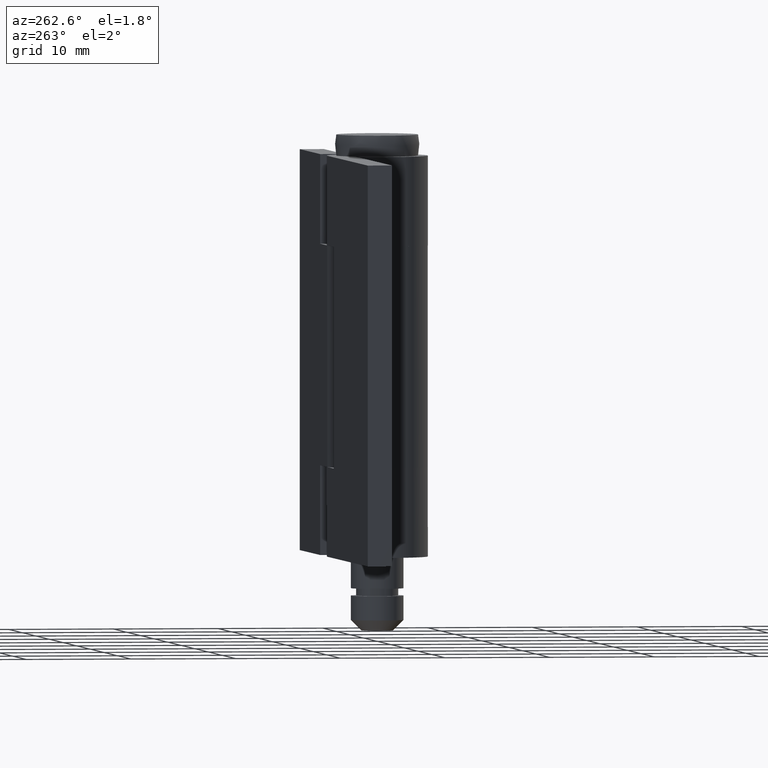
[diagram: clean part render]
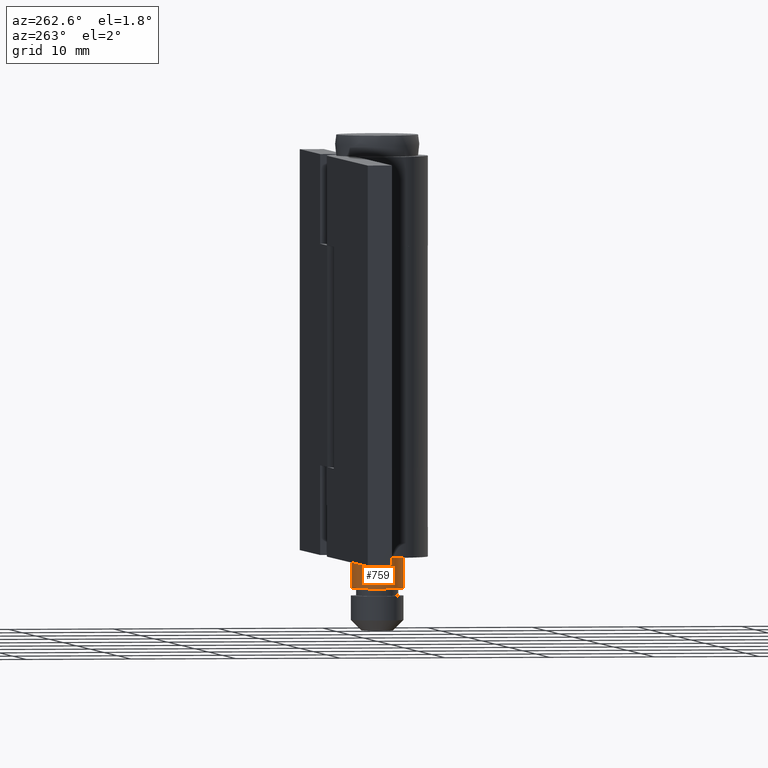
[diagram: same view with one face highlighted and labeled with its STEP entity id]
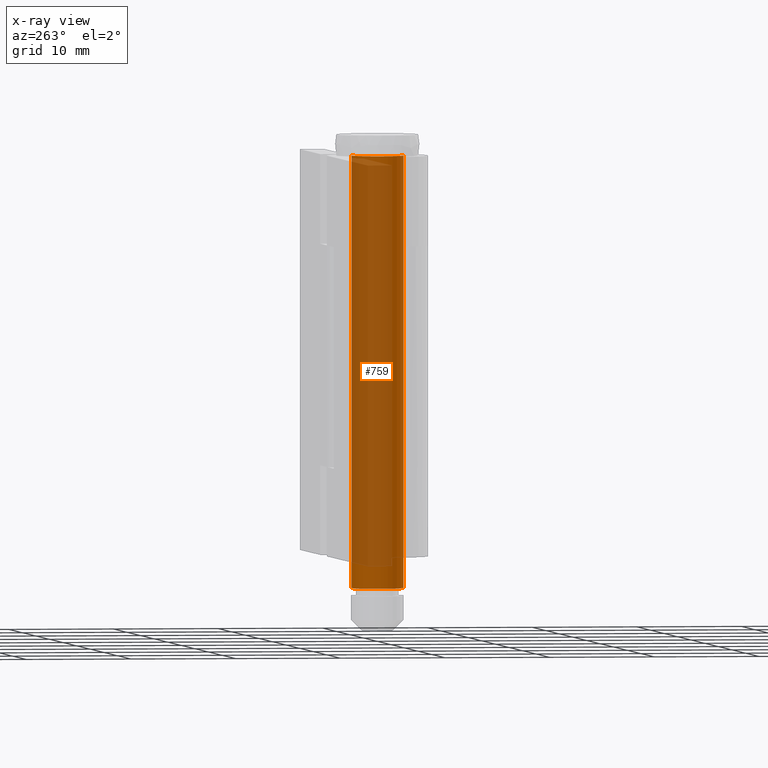
[diagram: x-ray of the same camera — body ghosted, the highlighted face saturated]
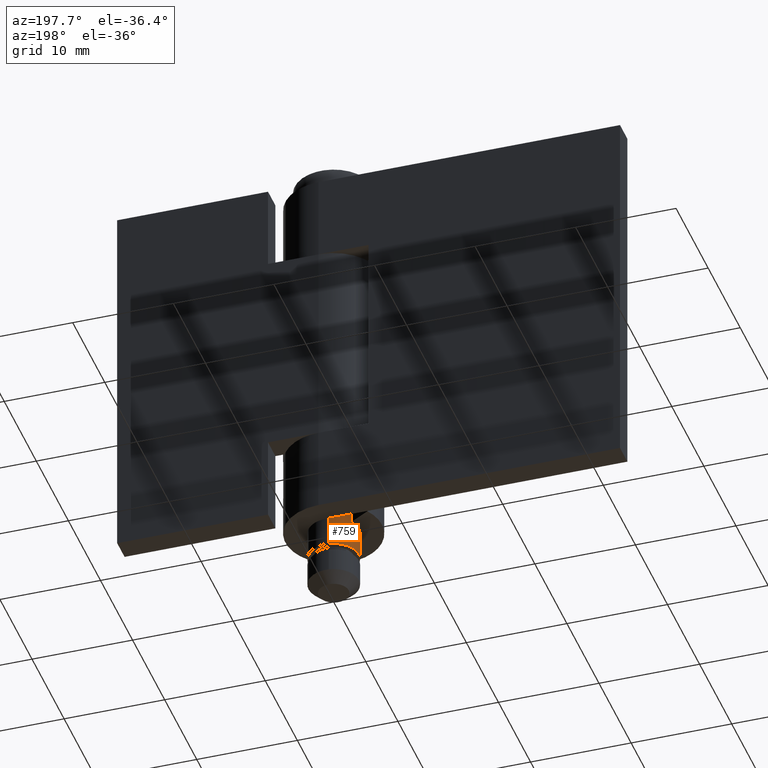
[diagram: same view with one face highlighted and labeled with its STEP entity id]
A machine part, auxiliary view. The second image highlights one B-rep face of the part: STEP entity #759.
The next image is the same camera in x-ray: the body ghosted, the highlighted face saturated — about 73% of this face is hidden behind the body in this view.
A second angle (auxiliary view) of the same face is appended — the face is thin or edge-on in the first view.
In plain terms, the highlighted face is a freeform B-spline surface patch.
Its self-contained STEP definition (entity closure, byte-faithful):
#596=CARTESIAN_POINT('',(-0.295085586658774,2.482523815913265,-2.999999999875517));
#597=VERTEX_POINT('',#596);
#615=CARTESIAN_POINT('',(-0.295085586658625,2.482523815912011,38.000000000000007));
#616=VERTEX_POINT('',#615);
#617=CARTESIAN_POINT('',(-0.295085586658625,2.482523815912011,38.000000000000007));
#618=CARTESIAN_POINT('',(-0.295085586658774,2.482523815913265,-2.999999999875517));
#619=QUASI_UNIFORM_CURVE('',1,(#617,#618),.UNSPECIFIED.,.F.,.U.);
#620=EDGE_CURVE('',#616,#597,#619,.T.);
#639=CARTESIAN_POINT('',(0.152621348919608,-2.495336996054433,38.0));
#640=VERTEX_POINT('',#639);
#654=CARTESIAN_POINT('',(0.152621348919685,-2.495336996055693,-2.999999999875513));
#655=VERTEX_POINT('',#654);
#656=CARTESIAN_POINT('',(0.152621348919608,-2.495336996054433,38.0));
#657=CARTESIAN_POINT('',(0.152621348919685,-2.495336996055693,-2.999999999875513));
#658=QUASI_UNIFORM_CURVE('',1,(#656,#657),.UNSPECIFIED.,.F.,.U.);
#659=EDGE_CURVE('',#640,#655,#658,.T.);
#677=CARTESIAN_POINT('',(0.152621348837474,-2.495336996060087,39.024999999996894));
#678=CARTESIAN_POINT('',(-2.342715647222613,-2.647958344897561,39.024999999996894));
#679=CARTESIAN_POINT('',(-2.495336996060087,-0.152621348837474,39.024999999996894));
#680=CARTESIAN_POINT('',(-2.639465491837052,2.203858727103540,39.024999999996901));
#681=CARTESIAN_POINT('',(-0.295085586642537,2.482523815914558,39.024999999996901));
#682=CARTESIAN_POINT('',(0.152621348837474,-2.495336996060087,-4.050624999872326));
#683=CARTESIAN_POINT('',(-2.342715647222613,-2.647958344897561,-4.050624999872325));
#684=CARTESIAN_POINT('',(-2.495336996060087,-0.152621348837474,-4.050624999872326));
#685=CARTESIAN_POINT('',(-2.639465491837052,2.203858727103540,-4.050624999872326));
#686=CARTESIAN_POINT('',(-0.295085586642537,2.482523815914558,-4.050624999872327));
#694=(BOUNDED_SURFACE()B_SPLINE_SURFACE(2,1,((#677,#682),(#678,#683),(#679,#684),(#680,#685),(#681,#686)),.UNSPECIFIED.,.F.,.F.,.U.)B_SPLINE_SURFACE_WITH_KNOTS((3,2,3),(2,2),(0.0,4.142135623739947,8.118585822530294),(0.0,43.075624999869227),.UNSPECIFIED.)GEOMETRIC_REPRESENTATION_ITEM()RATIONAL_B_SPLINE_SURFACE(((1.0,1.0),(0.707106781186548,0.707106781186548),(1.0,1.0),(0.718822509939086,0.718822509939086),(0.977505800795127,0.977505800795127)))REPRESENTATION_ITEM('')SURFACE());
#695=CARTESIAN_POINT('',(-2.500000000006695,0.0,-2.999999999875515));
#696=VERTEX_POINT('',#695);
#697=CARTESIAN_POINT('',(-2.500000000006695,0.0,-2.999999999875515));
#698=CARTESIAN_POINT('',(-2.500000000006696,2.220436314855251,-2.999999999875514));
#699=CARTESIAN_POINT('',(-0.295085586658774,2.482523815913265,-2.999999999875517));
#707=(BOUNDED_CURVE()B_SPLINE_CURVE(2,(#697,#698,#699),.UNSPECIFIED.,.F.,.U.)B_SPLINE_CURVE_WITH_KNOTS((3,3),(0.0,0.229562473513444),.UNSPECIFIED.)CURVE()GEOMETRIC_REPRESENTATION_ITEM()RATIONAL_B_SPLINE_CURVE((1.0,0.731050832855478,0.956026754183573))REPRESENTATION_ITEM(''));
#708=EDGE_CURVE('',#696,#597,#707,.T.);
#709=ORIENTED_EDGE('',*,*,#708,.F.);
#710=CARTESIAN_POINT('',(0.152621348919685,-2.495336996055693,-2.999999999875513));
#711=CARTESIAN_POINT('',(0.076381908329080,-2.500000000006696,-2.999999999875516));
#712=CARTESIAN_POINT('',(0.0,-2.500000000006695,-2.999999999875515));
#713=CARTESIAN_POINT('',(-2.500000000006696,-2.500000000006696,-2.999999999875515));
#714=CARTESIAN_POINT('',(-2.500000000006695,0.0,-2.999999999875515));
#722=(BOUNDED_CURVE()B_SPLINE_CURVE(2,(#710,#711,#712,#713,#714),.UNSPECIFIED.,.F.,.U.)B_SPLINE_CURVE_WITH_KNOTS((3,2,3),(0.739332962230604,0.750000000000000,1.0),.UNSPECIFIED.)CURVE()GEOMETRIC_REPRESENTATION_ITEM()RATIONAL_B_SPLINE_CURVE((0.976072041648846,0.987502787890068,1.0,0.707106781186547,1.0))REPRESENTATION_ITEM(''));
#723=EDGE_CURVE('',#655,#696,#722,.T.);
#724=ORIENTED_EDGE('',*,*,#723,.F.);
#725=ORIENTED_EDGE('',*,*,#659,.F.);
#726=CARTESIAN_POINT('',(-2.500000000004170,0.0,38.0));
#727=VERTEX_POINT('',#726);
#728=CARTESIAN_POINT('',(0.152621348919608,-2.495336996054433,38.0));
#729=CARTESIAN_POINT('',(0.076381908329003,-2.500000000004170,38.000000000000007));
#730=CARTESIAN_POINT('',(0.0,-2.500000000004170,38.0));
#731=CARTESIAN_POINT('',(-2.500000000004170,-2.500000000004170,37.999999999999993));
#732=CARTESIAN_POINT('',(-2.500000000004170,0.0,38.0));
#740=(BOUNDED_CURVE()B_SPLINE_CURVE(2,(#728,#729,#730,#731,#732),.UNSPECIFIED.,.F.,.U.)B_SPLINE_CURVE_WITH_KNOTS((3,2,3),(0.739332962230604,0.750000000000000,1.0),.UNSPECIFIED.)CURVE()GEOMETRIC_REPRESENTATION_ITEM()RATIONAL_B_SPLINE_CURVE((0.976072041648846,0.987502787890068,1.0,0.707106781186547,1.0))REPRESENTATION_ITEM(''));
#741=EDGE_CURVE('',#640,#727,#740,.T.);
#742=ORIENTED_EDGE('',*,*,#741,.T.);
#743=CARTESIAN_POINT('',(-2.500000000004170,0.0,38.0));
#744=CARTESIAN_POINT('',(-2.500000000004170,2.220436314853008,38.000000000000007));
#745=CARTESIAN_POINT('',(-0.295085586658625,2.482523815912011,38.000000000000007));
#753=(BOUNDED_CURVE()B_SPLINE_CURVE(2,(#743,#744,#745),.UNSPECIFIED.,.F.,.U.)B_SPLINE_CURVE_WITH_KNOTS((3,3),(0.0,0.229562473513444),.UNSPECIFIED.)CURVE()GEOMETRIC_REPRESENTATION_ITEM()RATIONAL_B_SPLINE_CURVE((1.0,0.731050832855478,0.956026754183573))REPRESENTATION_ITEM(''));
#754=EDGE_CURVE('',#727,#616,#753,.T.);
#755=ORIENTED_EDGE('',*,*,#754,.T.);
#756=ORIENTED_EDGE('',*,*,#620,.T.);
#757=EDGE_LOOP('',(#709,#724,#725,#742,#755,#756));
#758=FACE_OUTER_BOUND('',#757,.T.);
#759=ADVANCED_FACE('',(#758),#694,.T.);